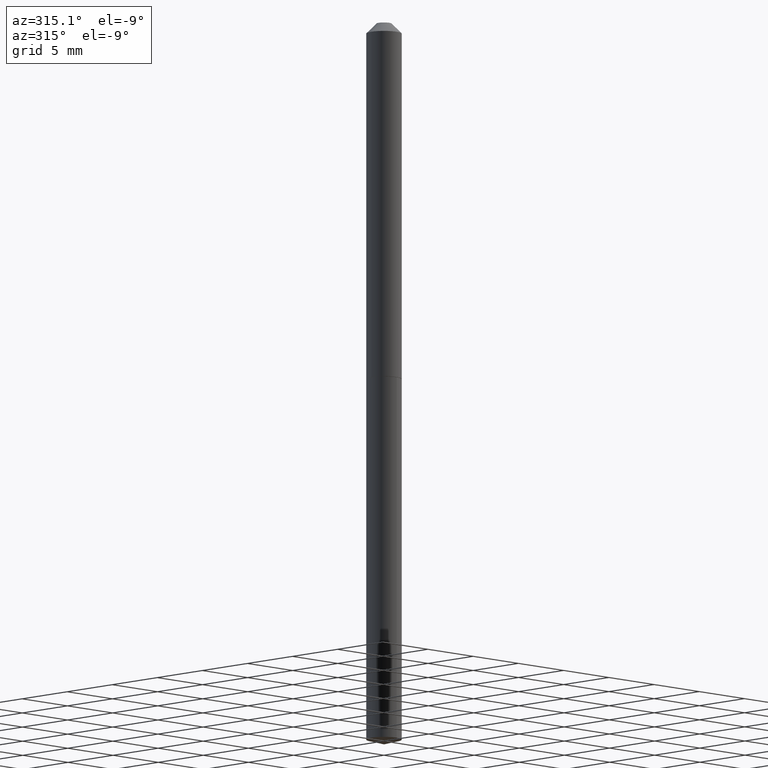
[diagram: clean part render]
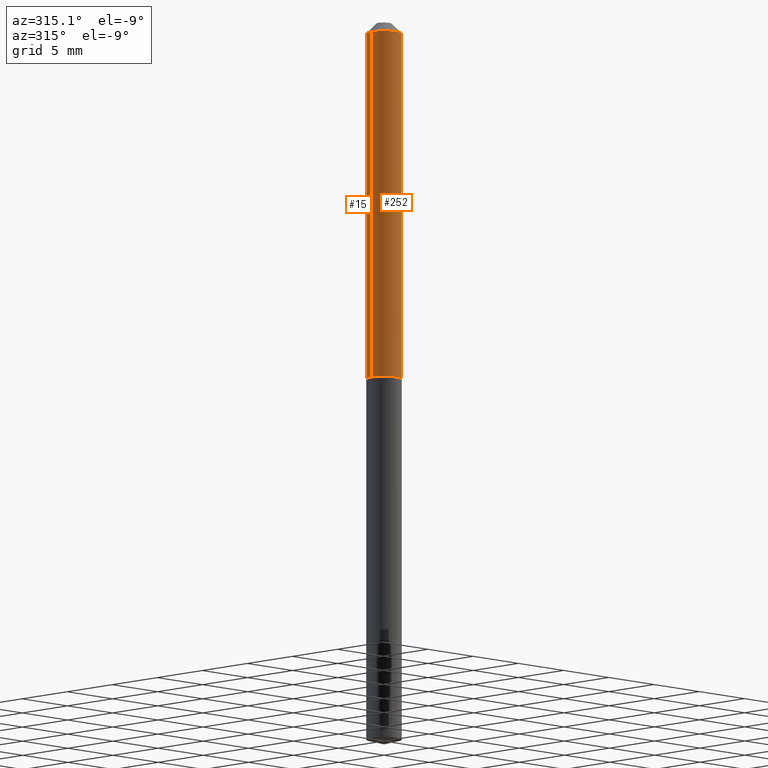
[diagram: same view with one multi-face feature highlighted, each face labeled with its STEP entity id]
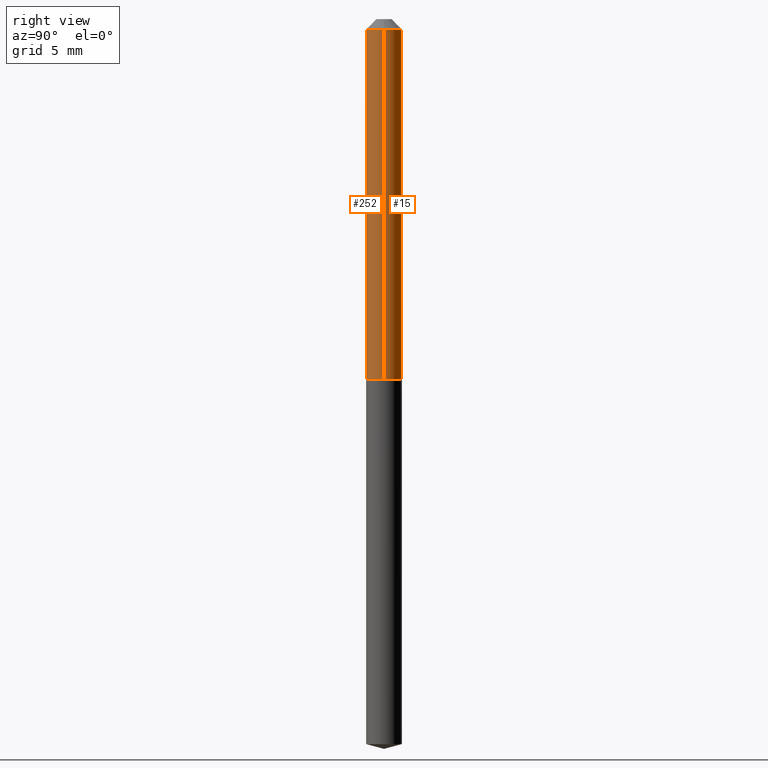
[diagram: same view with one multi-face feature highlighted, each face labeled with its STEP entity id]
A machine part, auxiliary view. The highlighted faces form ONE feature: a constant-radius fillet chain: 2 tangent blend faces with common blend radius 1.397 mm. The faces share edges in the B-rep.
A second angle (right view) of the same feature is appended — it is thin or edge-on in the first view.
Their STEP definitions:
[1] entity #15 (Cylinder):
#14 = CARTESIAN_POINT ( 'NONE',  ( 0.000000000000000000, 0.000000000000000000, 0.000000000000000000 ) ) ;
#15 = ADVANCED_FACE ( 'NONE', ( #125 ), #226, .T. ) ;
#21 = EDGE_CURVE ( 'NONE', #221, #370, #159, .T. ) ;
#35 = EDGE_LOOP ( 'NONE', ( #168, #148, #337, #216 ) ) ;
#51 = CIRCLE ( 'NONE', #340, 0.05500000000000001416 ) ;
#63 = EDGE_CURVE ( 'NONE', #370, #169, #282, .T. ) ;
#71 = VECTOR ( 'NONE', #99, 39.37007874015748143 ) ;
#72 = DIRECTION ( 'NONE',  ( 1.000000000000000000, -6.982962677686267499E-15, 4.876176775795936353E-29 ) ) ;
#99 = DIRECTION ( 'NONE',  ( -2.445468806185136877E-29, 3.491481338843145188E-15, 1.000000000000000000 ) ) ;
#105 = DIRECTION ( 'NONE',  ( -2.445468806185136597E-29, 3.491481338843145583E-15, 1.000000000000000000 ) ) ;
#125 = FACE_OUTER_BOUND ( 'NONE', #35, .T. ) ;
#131 = CARTESIAN_POINT ( 'NONE',  ( 7.642090019328601786E-31, -1.091087918388490144E-16, -0.03125000000000020123 ) ) ;
#132 = DIRECTION ( 'NONE',  ( 1.000000000000000000, -6.982962677686270655E-15, 0.000000000000000000 ) ) ;
#135 = CARTESIAN_POINT ( 'NONE',  ( 2.713247640462409112E-29, -3.873798545446469458E-15, -1.109499999999999931 ) ) ;
#148 = ORIENTED_EDGE ( 'NONE', *, *, #63, .T. ) ;
#150 = CARTESIAN_POINT ( 'NONE',  ( -0.05500000000000001416, -1.600655163974602647E-15, -0.03125000000000020123 ) ) ;
#158 = CARTESIAN_POINT ( 'NONE',  ( 0.05500000000000001416, -4.931717391115936908E-16, -0.03125000000000020123 ) ) ;
#159 = CIRCLE ( 'NONE', #279, 0.05500000000000013906 ) ;
#168 = ORIENTED_EDGE ( 'NONE', *, *, #21, .T. ) ;
#169 = VERTEX_POINT ( 'NONE', #150 ) ;
#216 = ORIENTED_EDGE ( 'NONE', *, *, #289, .F. ) ;
#221 = VERTEX_POINT ( 'NONE', #300 ) ;
#225 = DIRECTION ( 'NONE',  ( -2.445468806185136597E-29, 3.491481338843145583E-15, 1.000000000000000000 ) ) ;
#226 = CYLINDRICAL_SURFACE ( 'NONE', #341, 0.05500000000000007661 ) ;
#227 = VECTOR ( 'NONE', #343, 39.37007874015748143 ) ;
#229 = DIRECTION ( 'NONE',  ( -2.445468806185136597E-29, 3.491481338843145583E-15, 1.000000000000000000 ) ) ;
#279 = AXIS2_PLACEMENT_3D ( 'NONE', #135, #229, #132 ) ;
#282 = LINE ( 'NONE', #309, #227 ) ;
#287 = LINE ( 'NONE', #311, #71 ) ;
#289 = EDGE_CURVE ( 'NONE', #221, #298, #287, .T. ) ;
#298 = VERTEX_POINT ( 'NONE', #158 ) ;
#300 = CARTESIAN_POINT ( 'NONE',  ( 0.05500000000000013906, -4.257861492719215232E-15, -1.109499999999999931 ) ) ;
#309 = CARTESIAN_POINT ( 'NONE',  ( -0.05500000000000007661, 3.907985046680556465E-16, -2.705414299640202216E-30 ) ) ;
#311 = CARTESIAN_POINT ( 'NONE',  ( 0.05500000000000007661, -3.840629472727452311E-16, 2.681897226687768680E-30 ) ) ;
#337 = ORIENTED_EDGE ( 'NONE', *, *, #362, .F. ) ;
#340 = AXIS2_PLACEMENT_3D ( 'NONE', #131, #225, #346 ) ;
#341 = AXIS2_PLACEMENT_3D ( 'NONE', #14, #105, #72 ) ;
#343 = DIRECTION ( 'NONE',  ( -2.445468806185136877E-29, 3.491481338843145188E-15, 1.000000000000000000 ) ) ;
#346 = DIRECTION ( 'NONE',  ( 1.000000000000000000, -6.982962677686265922E-15, 0.000000000000000000 ) ) ;
#362 = EDGE_CURVE ( 'NONE', #298, #169, #51, .T. ) ;
#370 = VERTEX_POINT ( 'NONE', #371 ) ;
#371 = CARTESIAN_POINT ( 'NONE',  ( -0.05500000000000013906, -3.483000040778413220E-15, -1.109499999999999931 ) ) ;
[2] entity #252 (Cylinder):
#1 = DIRECTION ( 'NONE',  ( 1.000000000000000000, -6.982962677686265922E-15, 0.000000000000000000 ) ) ;
#8 = AXIS2_PLACEMENT_3D ( 'NONE', #144, #265, #363 ) ;
#10 = EDGE_CURVE ( 'NONE', #370, #221, #389, .T. ) ;
#11 = EDGE_CURVE ( 'NONE', #169, #298, #188, .T. ) ;
#26 = ORIENTED_EDGE ( 'NONE', *, *, #10, .T. ) ;
#62 = CARTESIAN_POINT ( 'NONE',  ( 7.642090019328601786E-31, -1.091087918388490144E-16, -0.03125000000000020123 ) ) ;
#63 = EDGE_CURVE ( 'NONE', #370, #169, #282, .T. ) ;
#71 = VECTOR ( 'NONE', #99, 39.37007874015748143 ) ;
#88 = AXIS2_PLACEMENT_3D ( 'NONE', #62, #274, #1 ) ;
#94 = CARTESIAN_POINT ( 'NONE',  ( 2.713247640462409112E-29, -3.873798545446469458E-15, -1.109499999999999931 ) ) ;
#96 = ORIENTED_EDGE ( 'NONE', *, *, #63, .F. ) ;
#98 = ORIENTED_EDGE ( 'NONE', *, *, #289, .T. ) ;
#99 = DIRECTION ( 'NONE',  ( -2.445468806185136877E-29, 3.491481338843145188E-15, 1.000000000000000000 ) ) ;
#124 = CYLINDRICAL_SURFACE ( 'NONE', #8, 0.05500000000000007661 ) ;
#129 = DIRECTION ( 'NONE',  ( -2.445468806185136597E-29, 3.491481338843145583E-15, 1.000000000000000000 ) ) ;
#144 = CARTESIAN_POINT ( 'NONE',  ( 0.000000000000000000, 0.000000000000000000, 0.000000000000000000 ) ) ;
#150 = CARTESIAN_POINT ( 'NONE',  ( -0.05500000000000001416, -1.600655163974602647E-15, -0.03125000000000020123 ) ) ;
#158 = CARTESIAN_POINT ( 'NONE',  ( 0.05500000000000001416, -4.931717391115936908E-16, -0.03125000000000020123 ) ) ;
#169 = VERTEX_POINT ( 'NONE', #150 ) ;
#188 = CIRCLE ( 'NONE', #88, 0.05500000000000001416 ) ;
#214 = DIRECTION ( 'NONE',  ( 1.000000000000000000, -6.982962677686270655E-15, 0.000000000000000000 ) ) ;
#221 = VERTEX_POINT ( 'NONE', #300 ) ;
#227 = VECTOR ( 'NONE', #343, 39.37007874015748143 ) ;
#252 = ADVANCED_FACE ( 'NONE', ( #297 ), #124, .T. ) ;
#265 = DIRECTION ( 'NONE',  ( -2.445468806185136597E-29, 3.491481338843145583E-15, 1.000000000000000000 ) ) ;
#270 = AXIS2_PLACEMENT_3D ( 'NONE', #94, #129, #214 ) ;
#274 = DIRECTION ( 'NONE',  ( -2.445468806185136597E-29, 3.491481338843145583E-15, 1.000000000000000000 ) ) ;
#282 = LINE ( 'NONE', #309, #227 ) ;
#287 = LINE ( 'NONE', #311, #71 ) ;
#289 = EDGE_CURVE ( 'NONE', #221, #298, #287, .T. ) ;
#293 = ORIENTED_EDGE ( 'NONE', *, *, #11, .F. ) ;
#297 = FACE_OUTER_BOUND ( 'NONE', #329, .T. ) ;
#298 = VERTEX_POINT ( 'NONE', #158 ) ;
#300 = CARTESIAN_POINT ( 'NONE',  ( 0.05500000000000013906, -4.257861492719215232E-15, -1.109499999999999931 ) ) ;
#309 = CARTESIAN_POINT ( 'NONE',  ( -0.05500000000000007661, 3.907985046680556465E-16, -2.705414299640202216E-30 ) ) ;
#311 = CARTESIAN_POINT ( 'NONE',  ( 0.05500000000000007661, -3.840629472727452311E-16, 2.681897226687768680E-30 ) ) ;
#329 = EDGE_LOOP ( 'NONE', ( #96, #26, #98, #293 ) ) ;
#343 = DIRECTION ( 'NONE',  ( -2.445468806185136877E-29, 3.491481338843145188E-15, 1.000000000000000000 ) ) ;
#363 = DIRECTION ( 'NONE',  ( 1.000000000000000000, -6.982962677686267499E-15, 4.876176775795936353E-29 ) ) ;
#370 = VERTEX_POINT ( 'NONE', #371 ) ;
#371 = CARTESIAN_POINT ( 'NONE',  ( -0.05500000000000013906, -3.483000040778413220E-15, -1.109499999999999931 ) ) ;
#389 = CIRCLE ( 'NONE', #270, 0.05500000000000013906 ) ;